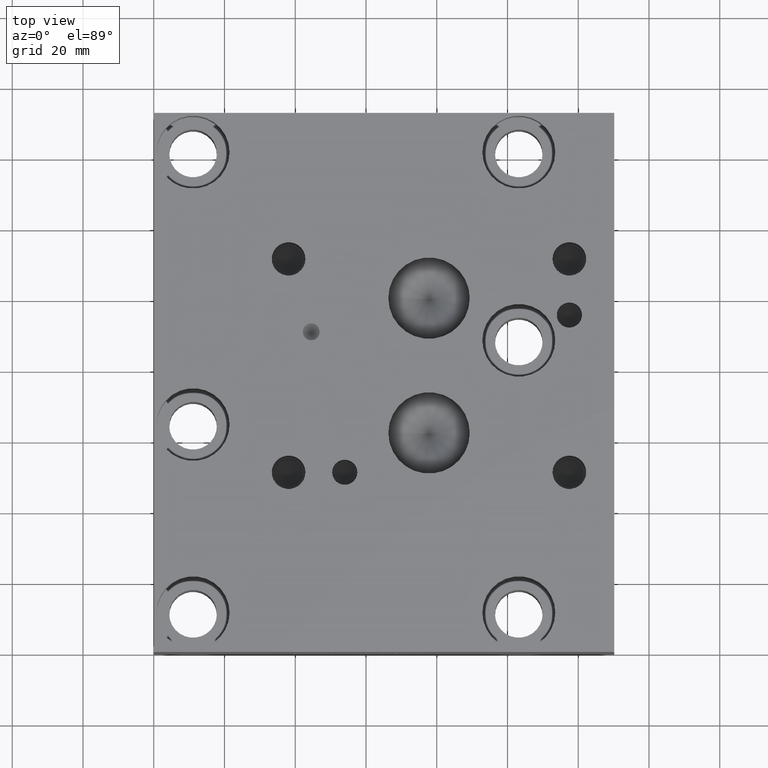
[diagram: clean part render]
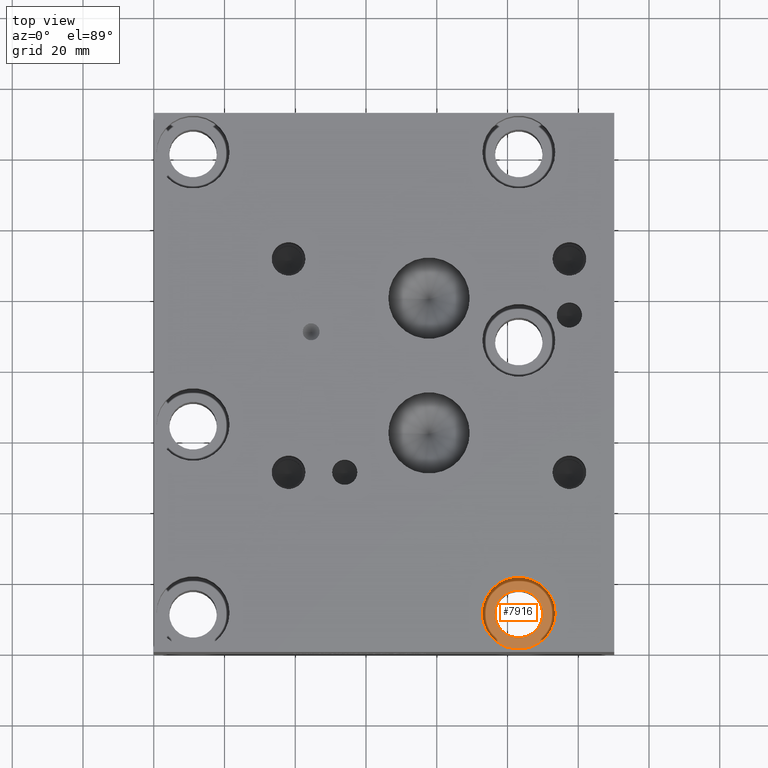
[diagram: same view with one face highlighted and labeled with its STEP entity id]
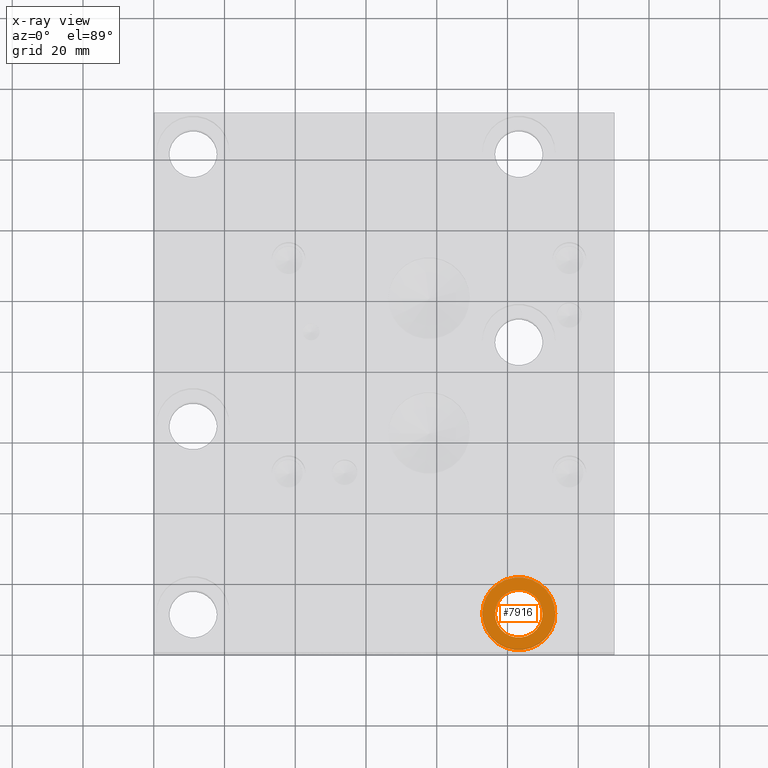
[diagram: x-ray of the same camera — body ghosted, the highlighted face saturated]
A machine part, top view. The second image highlights one B-rep face of the part: STEP entity #7916.
The next image is the same camera in x-ray: the body ghosted, the highlighted face saturated — about 0% of this face is hidden behind the body in this view.
In plain terms, the highlighted planar face has unit normal (0, 0, -1).
Its self-contained STEP definition (entity closure, byte-faithful):
#156=CIRCLE('',#8340,10.3124);
#157=CIRCLE('',#8341,10.3124);
#158=CIRCLE('',#8343,6.7437);
#159=CIRCLE('',#8344,6.7437);
#573=FACE_BOUND('',#1417,.T.);
#974=FACE_OUTER_BOUND('',#1416,.T.);
#1416=EDGE_LOOP('',(#6772,#6773));
#1417=EDGE_LOOP('',(#6774,#6775));
#3648=VERTEX_POINT('',#13615);
#3649=VERTEX_POINT('',#13617);
#3650=VERTEX_POINT('',#13621);
#3651=VERTEX_POINT('',#13622);
#4724=EDGE_CURVE('',#3648,#3649,#156,.T.);
#4725=EDGE_CURVE('',#3649,#3648,#157,.T.);
#4726=EDGE_CURVE('',#3650,#3651,#158,.T.);
#4727=EDGE_CURVE('',#3651,#3650,#159,.T.);
#6772=ORIENTED_EDGE('',*,*,#4725,.F.);
#6773=ORIENTED_EDGE('',*,*,#4724,.F.);
#6774=ORIENTED_EDGE('',*,*,#4726,.T.);
#6775=ORIENTED_EDGE('',*,*,#4727,.T.);
#7237=PLANE('',#8342);
#7916=ADVANCED_FACE('',(#974,#573),#7237,.F.);
#8340=AXIS2_PLACEMENT_3D('',#13618,#9887,#9888);
#8341=AXIS2_PLACEMENT_3D('',#13619,#9889,#9890);
#8342=AXIS2_PLACEMENT_3D('',#13620,#9891,#9892);
#8343=AXIS2_PLACEMENT_3D('',#13623,#9893,#9894);
#8344=AXIS2_PLACEMENT_3D('',#13624,#9895,#9896);
#9887=DIRECTION('center_axis',(0.,0.,-1.));
#9888=DIRECTION('ref_axis',(1.,0.,0.));
#9889=DIRECTION('center_axis',(0.,0.,-1.));
#9890=DIRECTION('ref_axis',(1.,0.,0.));
#9891=DIRECTION('center_axis',(0.,0.,-1.));
#9892=DIRECTION('ref_axis',(-1.,0.,0.));
#9893=DIRECTION('center_axis',(0.,0.,-1.));
#9894=DIRECTION('ref_axis',(1.,0.,0.));
#9895=DIRECTION('center_axis',(0.,0.,-1.));
#9896=DIRECTION('ref_axis',(1.,0.,0.));
#13615=CARTESIAN_POINT('',(92.8751,11.1125,31.75));
#13617=CARTESIAN_POINT('',(113.4999,11.1125,31.75));
#13618=CARTESIAN_POINT('Origin',(103.1875,11.1125,31.75));
#13619=CARTESIAN_POINT('Origin',(103.1875,11.1125,31.75));
#13620=CARTESIAN_POINT('Origin',(109.9312,11.1125,31.75));
#13621=CARTESIAN_POINT('',(109.9312,11.1125,31.75));
#13622=CARTESIAN_POINT('',(96.4438,11.1125,31.75));
#13623=CARTESIAN_POINT('Origin',(103.1875,11.1125,31.75));
#13624=CARTESIAN_POINT('Origin',(103.1875,11.1125,31.75));